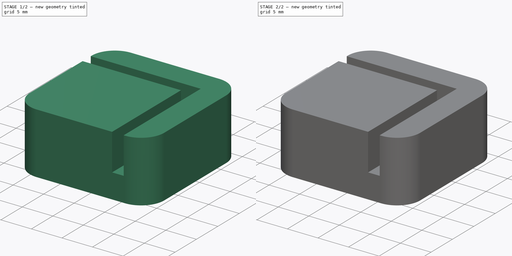
[diagram: build sequence overview — one tinted view per stage of 2, left to right]
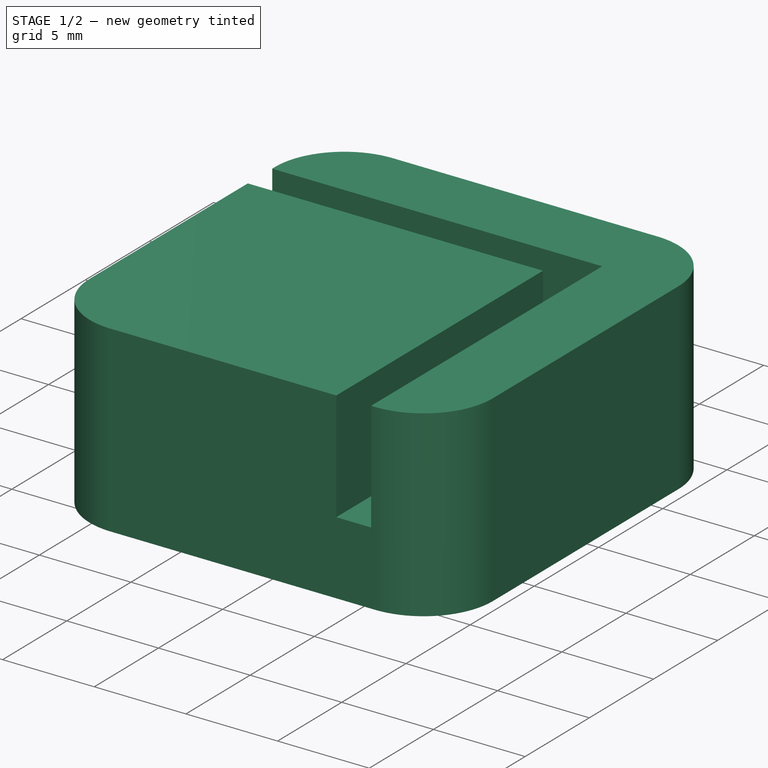
[diagram: stage 1 of 2 — iso view after this stage's code; geometry added in this stage tinted green]
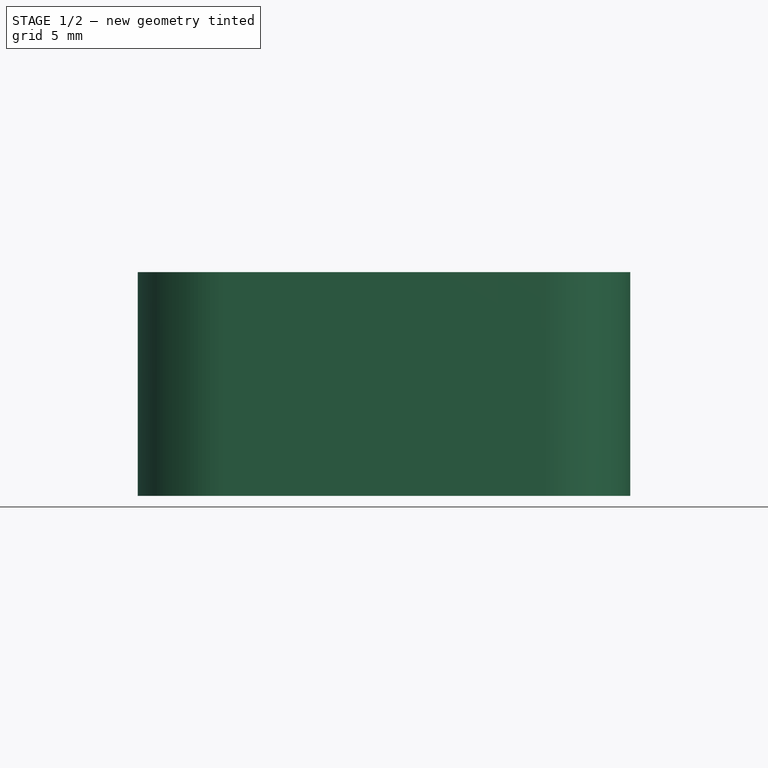
[diagram: stage 1 of 2 — front view after this stage's code; geometry added in this stage tinted green]
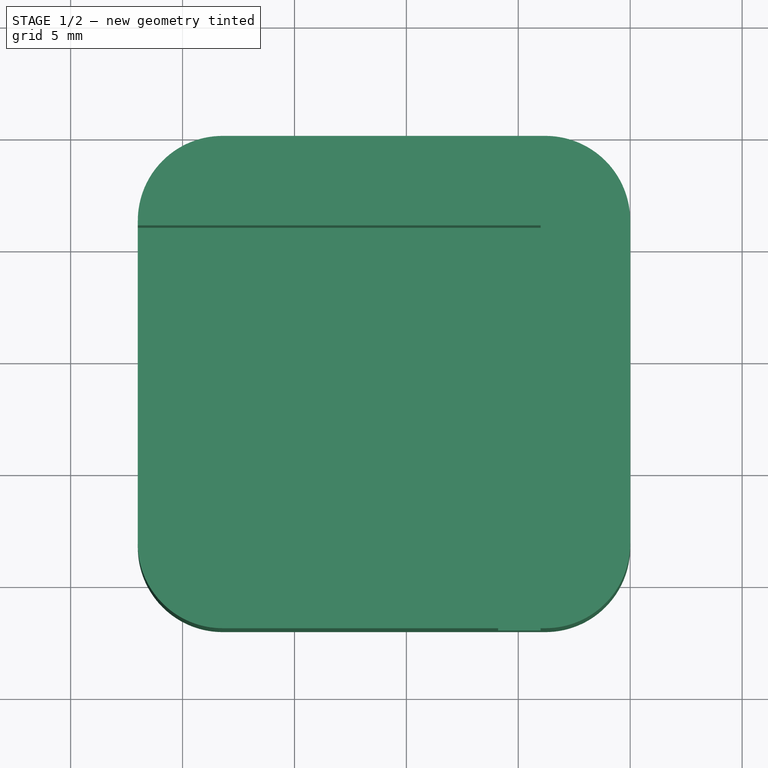
[diagram: stage 1 of 2 — top view after this stage's code; geometry added in this stage tinted green]
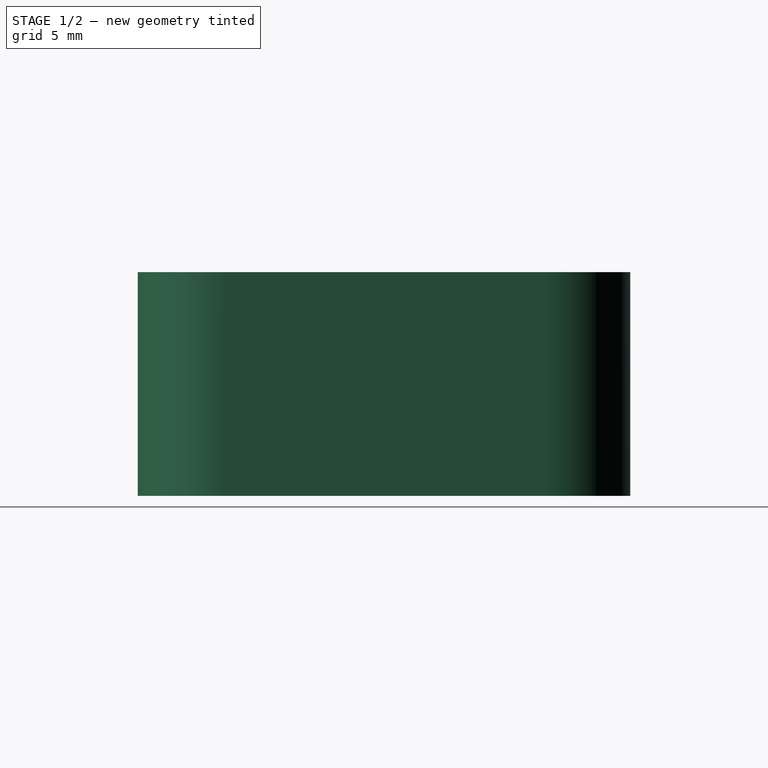
[diagram: stage 1 of 2 — right view after this stage's code; geometry added in this stage tinted green]
FCSTD DOCUMENT  (FreeCAD 1.0R39319 (Git))
Label: feet
License: All rights reserved
LicenseURL: https://en.wikipedia.org/wiki/All_rights_reserved
objects: Sketcher::SketchObject×3, PartDesign::Pocket×2, PartDesign::Pad×1, PartDesign::Body×1
note: 16 computed .brp shape members not serialized (recipe doc carries the construction recipe); baked Part::Feature solids carry a one-line shape summary decoded from their .brp

FEATURE [Sketcher::SketchObject] Sketch
  ArcFitTolerance = 1e-06
  AttachmentSupport = -> [XY_Plane]
  FullyConstrained = false
  MakeInternals = false
  MapMode = 5
  sketch-geometry (10):
    g0: LineSegment StartX=-18.2126 StartY=-22 StartZ=0 EndX=-3.7874 EndY=-22 EndZ=0
    g1: LineSegment StartX=-6.608e-13 StartY=-18.2126 StartZ=0 EndX=-6.608e-13 EndY=-3.7874 EndZ=0
    g2: LineSegment StartX=-3.7874 StartY=-1.714e-13 StartZ=0 EndX=-18.2126 EndY=-1.714e-13 EndZ=0
    g3: LineSegment StartX=-22 StartY=-3.7874 StartZ=0 EndX=-22 EndY=-18.2126 EndZ=0
    g4: ArcOfCircle CenterX=-18.2126 CenterY=-18.2126 CenterZ=0 NormalX=0 NormalY=0 NormalZ=1 AngleXU=0 Radius=3.7874 StartAngle=3.14159 EndAngle=4.71239
    g5: ArcOfCircle CenterX=-3.7874 CenterY=-18.2126 CenterZ=0 NormalX=0 NormalY=0 NormalZ=1 AngleXU=0 Radius=3.7874 StartAngle=4.71239 EndAngle=6.28319
    g6: ArcOfCircle CenterX=-3.7874 CenterY=-3.7874 CenterZ=0 NormalX=0 NormalY=0 NormalZ=1 AngleXU=0 Radius=3.7874 StartAngle=5.5758e-12 EndAngle=1.5708
    g7: ArcOfCircle CenterX=-18.2126 CenterY=-3.7874 CenterZ=0 NormalX=0 NormalY=0 NormalZ=1 AngleXU=0 Radius=3.7874 StartAngle=1.5708 EndAngle=3.14159
    g8: GeomPoint [constr] X=-22 Y=-22 Z=0
    g9: GeomPoint [constr] X=0 Y=0 Z=0
  constraints (23):
    c: Tangent(g0,g4) = -1.5708
    c: Tangent(g0,g5) = -1.5708
    c: Tangent(g1,g5) = -1.5708
    c: Tangent(g1,g6) = -1.5708
    c: Tangent(g2,g6) = -1.5708
    c: Tangent(g2,g7) = -1.5708
    c: Tangent(g3,g7) = -1.5708
    c: Tangent(g3,g4) = -1.5708
    c: Horizontal(g0)
    c: Horizontal(g2)
    c: Vertical(g1)
    c: Vertical(g3)
    c: Equal(g4,g5)
    c: Equal(g5,g6)
    c: Equal(g6,g7)
    c: PointOnObject(g8,g0)
    c: PointOnObject(g8,g3)
    c: PointOnObject(g9,g1)
    c: PointOnObject(g9,g2)
    c: Distance(g1,g3) = 22
    c: Distance(g0,g2) = 22
    c: Vertical(g-1,g9)
    c: Horizontal(g9,g-1)
FEATURE [PartDesign::Pad] Pad
  Direction = (0,0,1)
  Length = 10
  Length2 = 10
  Profile = -> Sketch
  ReferenceAxis = -> Sketch [N_Axis]
  Refine = true
  Suppressed = false
  Type = 0
FEATURE [Sketcher::SketchObject] Sketch001
  ArcFitTolerance = 1e-06
  AttachmentSupport = -> [Pad]
  FullyConstrained = true
  MakeInternals = false
  MapMode = 5
  Placement = pos=(0,0,10) rot=(0,0,1;0rad)
  sketch-geometry (6):
    g0: LineSegment StartX=-4 StartY=-4 StartZ=0 EndX=-4 EndY=-24 EndZ=0
    g1: LineSegment StartX=-4 StartY=-4 StartZ=0 EndX=-24 EndY=-4 EndZ=0
    g2: LineSegment StartX=-5.9 StartY=-24 StartZ=0 EndX=-5.9 EndY=-5.9 EndZ=0
    g3: LineSegment StartX=-5.9 StartY=-5.9 StartZ=0 EndX=-24 EndY=-5.9 EndZ=0
    g4: LineSegment StartX=-24 StartY=-4 StartZ=0 EndX=-24 EndY=-5.9 EndZ=0
    g5: LineSegment StartX=-5.9 StartY=-24 StartZ=0 EndX=-4 EndY=-24 EndZ=0
  constraints (18):
    c: Vertical(g0)
    c: Coincident(g1,g0)
    c: Horizontal(g1)
    c: Vertical(g2)
    c: Coincident(g3,g2)
    c: Horizontal(g3)
    c: Coincident(g4,g1)
    c: Coincident(g4,g3)
    c: Vertical(g4)
    c: DistanceY(g4,g4) = 1.9
    c: Coincident(g5,g2)
    c: Coincident(g5,g0)
    c: DistanceX(g5,g5) = 1.9
    c: Angle(g0,g5,g0) = 1.5708
    c: DistanceX(g0,g-1) = 4
    c: DistanceY(g0,g-1) = 4
    c: DistanceX(g1,g1) = 20
    c: DistanceY(g0,g0) = 20
FEATURE [PartDesign::Pocket] Pocket
  BaseFeature = -> Pad
  Direction = (0,0,-1)
  Length = 6
  Length2 = 5
  Profile = -> Sketch001
  ReferenceAxis = -> Sketch001 [N_Axis]
  Refine = true
  Suppressed = false
  Type = 0
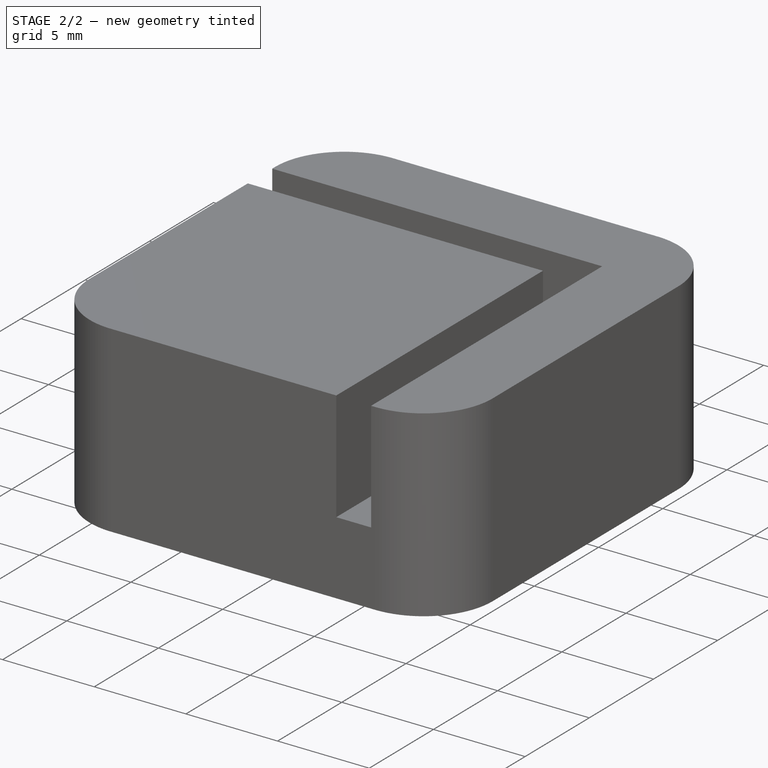
[diagram: stage 2 of 2 — iso view after this stage's code; geometry added in this stage tinted green]
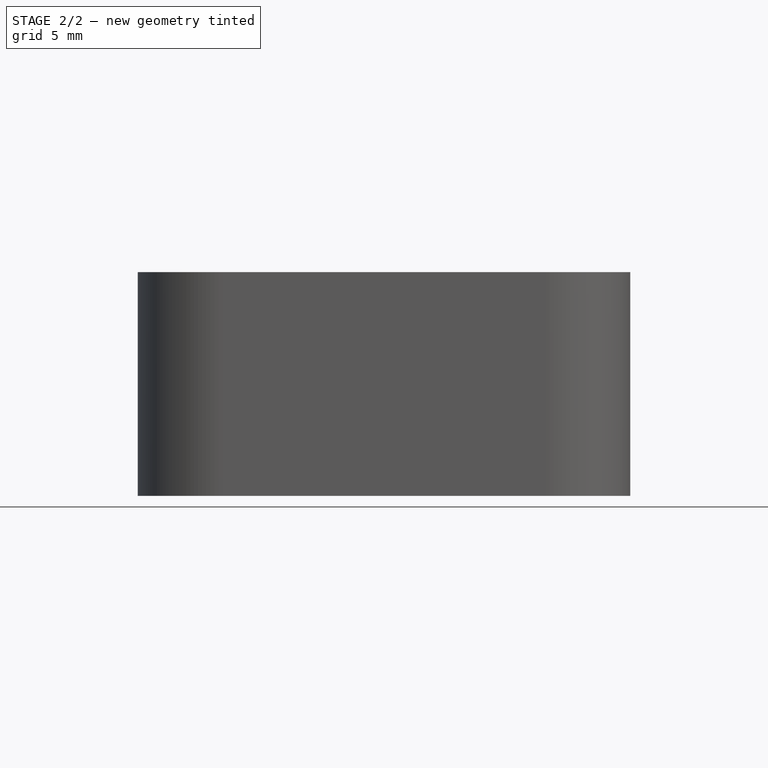
[diagram: stage 2 of 2 — front view after this stage's code; geometry added in this stage tinted green]
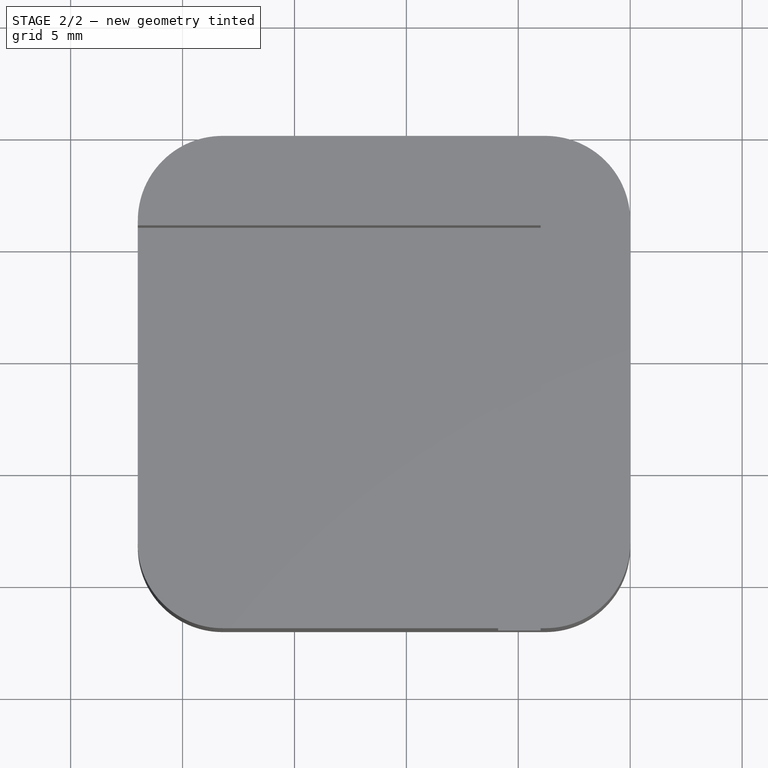
[diagram: stage 2 of 2 — top view after this stage's code; geometry added in this stage tinted green]
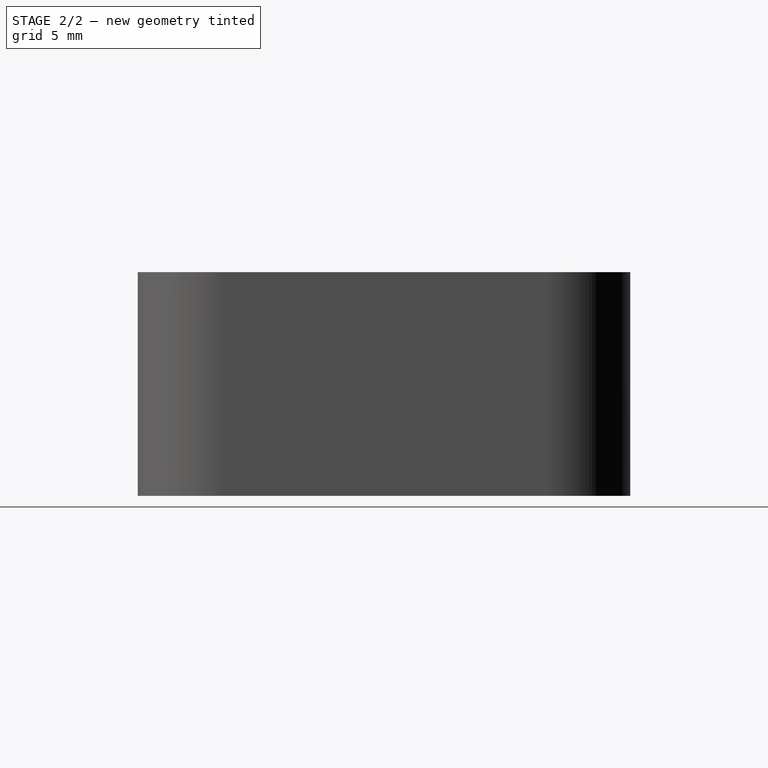
[diagram: stage 2 of 2 — right view after this stage's code; geometry added in this stage tinted green]
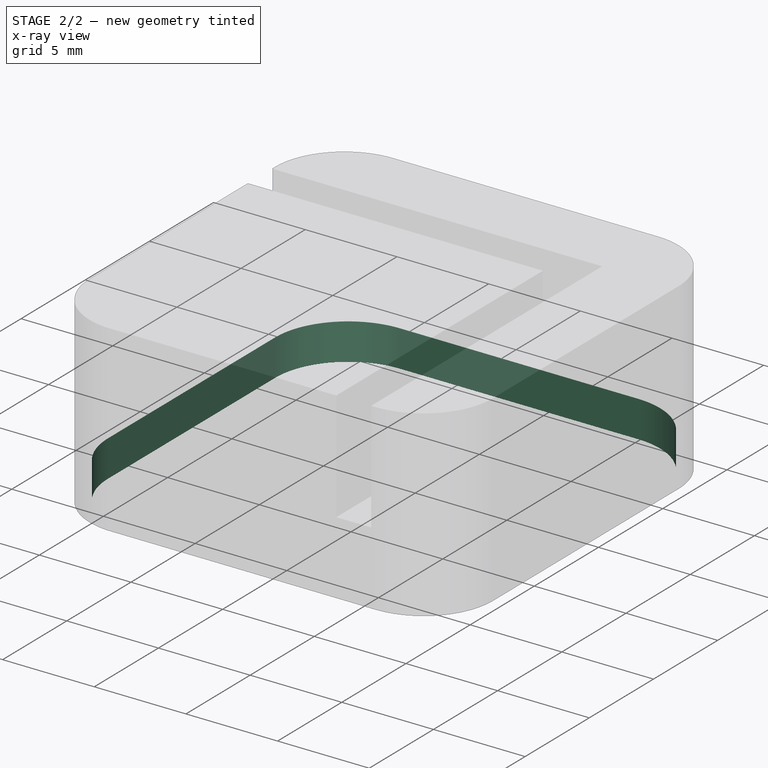
[diagram: stage 2 of 2 — x-ray composite at the iso view; earlier geometry ghosted, this stage's added geometry solid]
FEATURE [Sketcher::SketchObject] Sketch002
  ArcFitTolerance = 1e-06
  AttachmentSupport = -> [Pocket]
  FullyConstrained = true
  MakeInternals = false
  MapMode = 5
  Placement = pos=(0,0,0) rot=(1,0,0;3.14159rad)
  sketch-geometry (10):
    g0: LineSegment StartX=-21.5 StartY=17.5 StartZ=0 EndX=-21.5 EndY=4.5 EndZ=0
    g1: LineSegment StartX=-17.5 StartY=0.5 StartZ=0 EndX=-4.5 EndY=0.5 EndZ=0
    g2: LineSegment StartX=-0.5 StartY=4.5 StartZ=0 EndX=-0.5 EndY=17.5 EndZ=0
    g3: LineSegment StartX=-4.5 StartY=21.5 StartZ=0 EndX=-17.5 EndY=21.5 EndZ=0
    g4: ArcOfCircle CenterX=-17.5 CenterY=17.5 CenterZ=0 NormalX=0 NormalY=0 NormalZ=1 AngleXU=0 Radius=4 StartAngle=1.5708 EndAngle=3.14159
    g5: ArcOfCircle CenterX=-17.5 CenterY=4.5 CenterZ=0 NormalX=0 NormalY=0 NormalZ=1 AngleXU=0 Radius=4 StartAngle=3.14159 EndAngle=4.71239
    g6: ArcOfCircle CenterX=-4.5 CenterY=4.5 CenterZ=0 NormalX=0 NormalY=0 NormalZ=1 AngleXU=0 Radius=4 StartAngle=4.71239 EndAngle=6.28319
    g7: ArcOfCircle CenterX=-4.5 CenterY=17.5 CenterZ=0 NormalX=0 NormalY=0 NormalZ=1 AngleXU=0 Radius=4 StartAngle=0 EndAngle=1.5708
    g8: GeomPoint [constr] X=-21.5 Y=21.5 Z=0
    g9: GeomPoint [constr] X=-0.5 Y=0.5 Z=0
  constraints (24):
    c: Tangent(g0,g4) = -1.5708
    c: Tangent(g0,g5) = -1.5708
    c: Tangent(g1,g5) = -1.5708
    c: Tangent(g1,g6) = -1.5708
    c: Tangent(g2,g6) = -1.5708
    c: Tangent(g2,g7) = -1.5708
    c: Tangent(g3,g7) = -1.5708
    c: Tangent(g3,g4) = -1.5708
    c: Vertical(g0)
    c: Vertical(g2)
    c: Horizontal(g1)
    c: Horizontal(g3)
    c: Equal(g4,g5)
    c: Equal(g5,g6)
    c: Equal(g6,g7)
    c: PointOnObject(g8,g0)
    c: PointOnObject(g8,g3)
    c: PointOnObject(g9,g1)
    c: PointOnObject(g9,g2)
    c: Distance(g0,g2) = 21
    c: Distance(g1,g3) = 21
    c: Radius(g5) = 4
    c: DistanceX(g9,g-1) = 0.5
    c: DistanceY(g-1,g9) = 0.5
FEATURE [PartDesign::Pocket] Pocket001
  BaseFeature = -> Pocket
  Direction = (0,0,1)
  Length = 2
  Length2 = 5
  Profile = -> Sketch002
  ReferenceAxis = -> Sketch002 [N_Axis]
  Refine = true
  Suppressed = false
  Type = 0
FEATURE [PartDesign::Body] Body
  AllowCompound = false
  Group = -> [Sketch,Pad,Sketch001,Pocket,Sketch002,Pocket001]
  Origin = -> Origin
  Tip = -> Pocket001
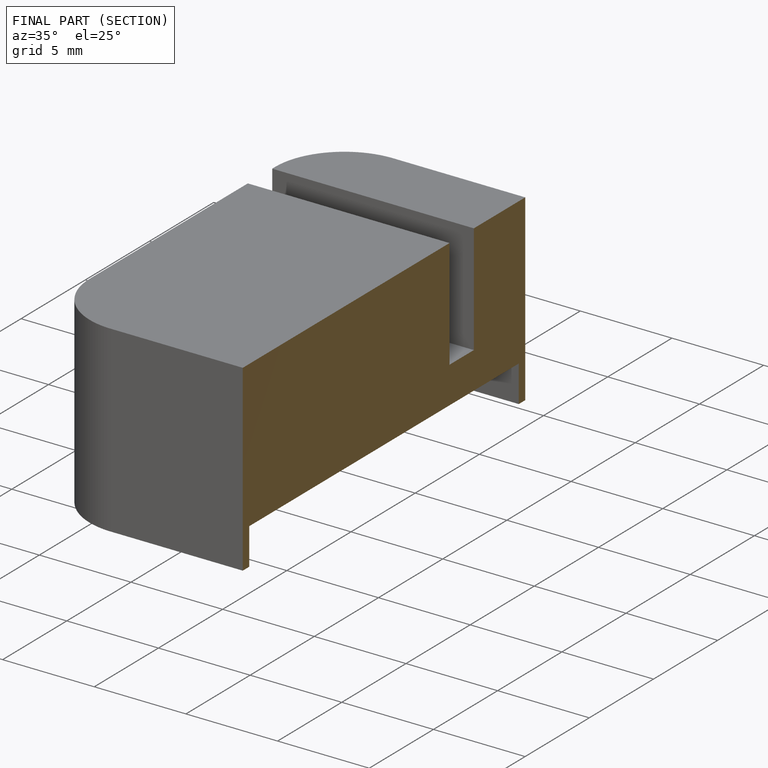
[diagram: finished part — half-section view (interior)]
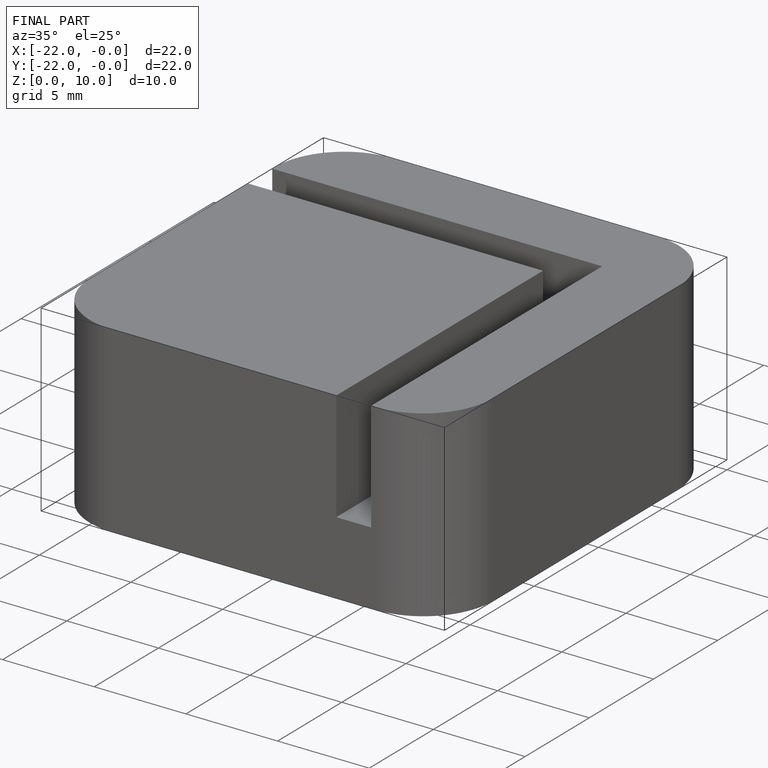
[diagram: finished part — iso view with bounding-box wireframe]
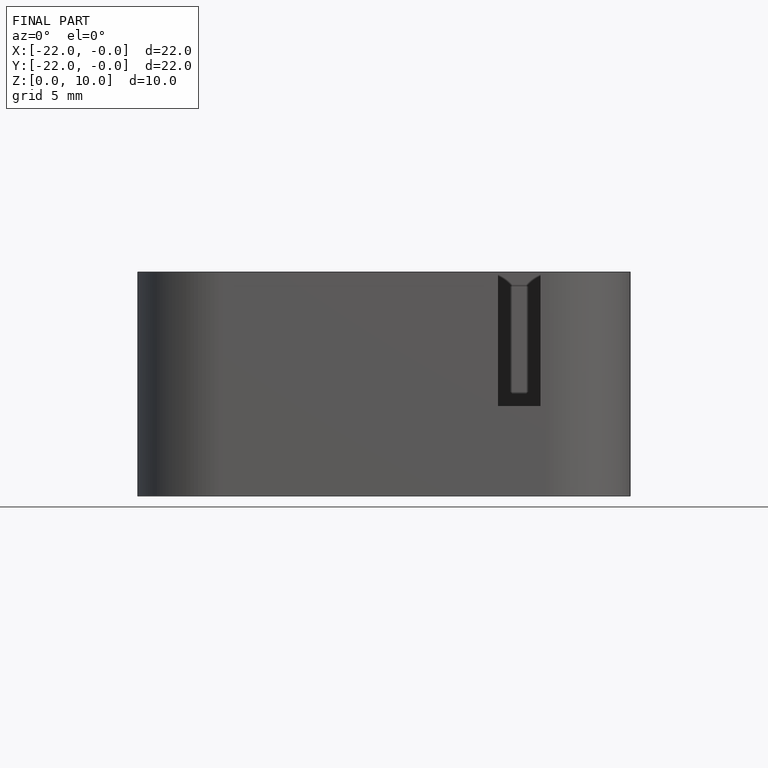
[diagram: finished part — front view with bounding-box wireframe]
